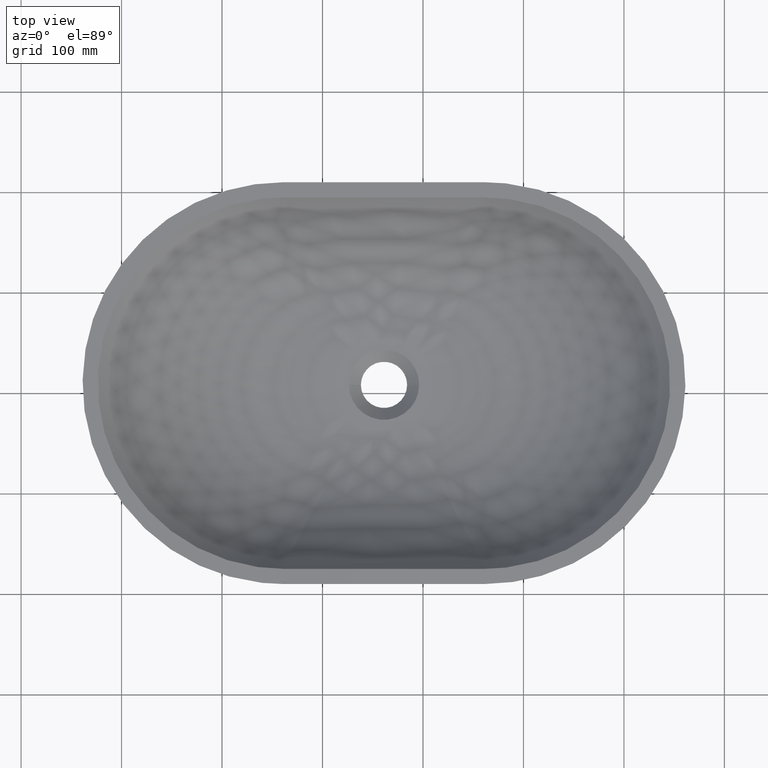
[diagram: clean part render]
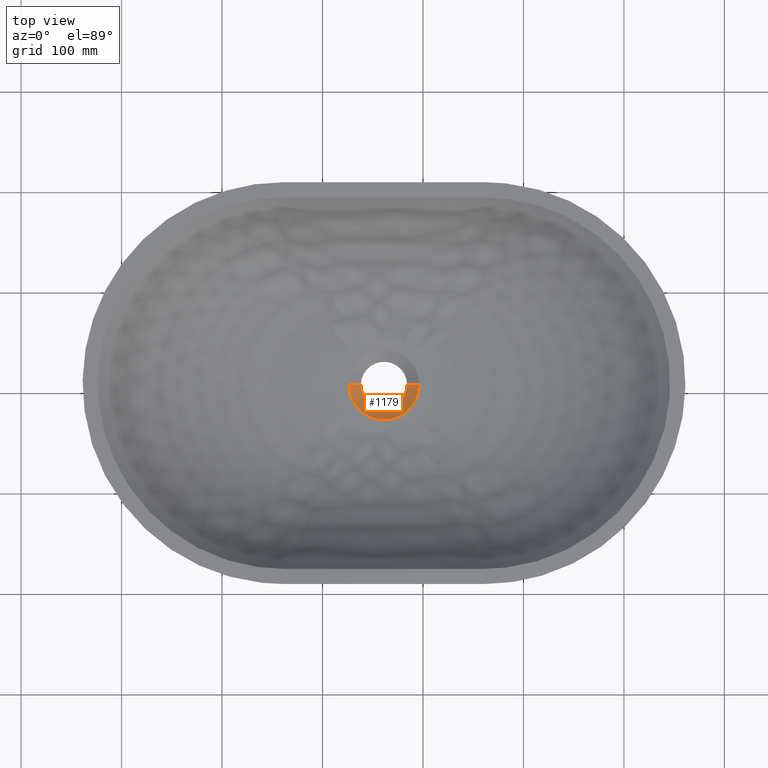
[diagram: same view with one face highlighted and labeled with its STEP entity id]
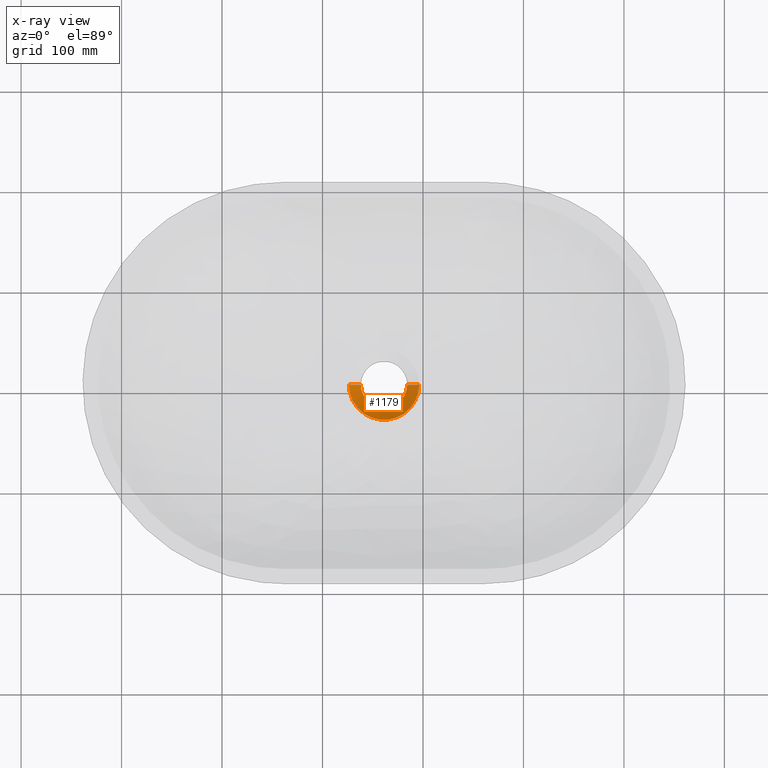
[diagram: x-ray of the same camera — body ghosted, the highlighted face saturated]
A machine part, top view. The second image highlights one B-rep face of the part: STEP entity #1179.
The next image is the same camera in x-ray: the body ghosted, the highlighted face saturated — about 0% of this face is hidden behind the body in this view.
In plain terms, the highlighted conical surface has half-angle 50 deg.
Its self-contained STEP definition (entity closure, byte-faithful):
#22 = VERTEX_POINT ( 'NONE', #698 ) ;
#69 = ORIENTED_EDGE ( 'NONE', *, *, #987, .T. ) ;
#112 = DIRECTION ( 'NONE',  ( 0.0000000000000000000, 0.0000000000000000000, 1.000000000000000000 ) ) ;
#119 = ORIENTED_EDGE ( 'NONE', *, *, #702, .F. ) ;
#135 = CARTESIAN_POINT ( 'NONE',  ( 161.1991770534110100, 8.487121510427186900, 17.31260013540784500 ) ) ;
#165 = DIRECTION ( 'NONE',  ( 1.000000000000000000, 0.0000000000000000000, 0.0000000000000000000 ) ) ;
#173 = LINE ( 'NONE', #1355, #319 ) ;
#195 = CIRCLE ( 'NONE', #431, 35.00000000000000000 ) ;
#213 = CARTESIAN_POINT ( 'NONE',  ( 161.1991770534110100, 8.487121510427186900, 17.31260013540784500 ) ) ;
#220 = ORIENTED_EDGE ( 'NONE', *, *, #1402, .F. ) ;
#280 = CIRCLE ( 'NONE', #1199, 22.99999999999999300 ) ;
#286 = VERTEX_POINT ( 'NONE', #729 ) ;
#303 = VERTEX_POINT ( 'NONE', #622 ) ;
#319 = VECTOR ( 'NONE', #906, 1000.000000000000100 ) ;
#413 = FACE_OUTER_BOUND ( 'NONE', #559, .T. ) ;
#431 = AXIS2_PLACEMENT_3D ( 'NONE', #642, #1353, #1050 ) ;
#523 = DIRECTION ( 'NONE',  ( -0.7660444431189786800, 9.381338752702735700E-017, 0.6427876096865384700 ) ) ;
#529 = LINE ( 'NONE', #1004, #1121 ) ;
#559 = EDGE_LOOP ( 'NONE', ( #835, #69, #119, #220 ) ) ;
#622 = CARTESIAN_POINT ( 'NONE',  ( 196.1991770534110100, 8.487121510427186900, 27.38179570953520400 ) ) ;
#642 = CARTESIAN_POINT ( 'NONE',  ( 161.1991770534110100, 8.487121510427186900, 27.38179570953520400 ) ) ;
#698 = CARTESIAN_POINT ( 'NONE',  ( 126.1991770534109900, 8.487121510427192200, 27.38179570953520400 ) ) ;
#702 = EDGE_CURVE ( 'NONE', #303, #22, #195, .T. ) ;
#729 = CARTESIAN_POINT ( 'NONE',  ( 138.1991770534110100, 8.487121510427190400, 17.31260013540784500 ) ) ;
#823 = EDGE_CURVE ( 'NONE', #286, #1285, #280, .T. ) ;
#835 = ORIENTED_EDGE ( 'NONE', *, *, #823, .F. ) ;
#864 = AXIS2_PLACEMENT_3D ( 'NONE', #135, #1408, #1343 ) ;
#906 = DIRECTION ( 'NONE',  ( 0.7660444431189786800, 0.0000000000000000000, 0.6427876096865384700 ) ) ;
#909 = CARTESIAN_POINT ( 'NONE',  ( 184.1991770534109800, 8.487121510427186900, 17.31260013540784500 ) ) ;
#987 = EDGE_CURVE ( 'NONE', #286, #22, #529, .T. ) ;
#1004 = CARTESIAN_POINT ( 'NONE',  ( 138.1991770534110100, 8.487121510427190400, 17.31260013540784500 ) ) ;
#1050 = DIRECTION ( 'NONE',  ( 0.0000000000000000000, -1.000000000000000000, 0.0000000000000000000 ) ) ;
#1121 = VECTOR ( 'NONE', #523, 1000.000000000000100 ) ;
#1179 = ADVANCED_FACE ( 'NONE', ( #413 ), #1384, .F. ) ;
#1199 = AXIS2_PLACEMENT_3D ( 'NONE', #213, #112, #165 ) ;
#1285 = VERTEX_POINT ( 'NONE', #909 ) ;
#1343 = DIRECTION ( 'NONE',  ( 1.000000000000000000, 0.0000000000000000000, 0.0000000000000000000 ) ) ;
#1353 = DIRECTION ( 'NONE',  ( 2.107482101496299700E-062, 3.030928690397908100E-032, -1.000000000000000000 ) ) ;
#1355 = CARTESIAN_POINT ( 'NONE',  ( 184.1991770534109800, 8.487121510427186900, 17.31260013540784500 ) ) ;
#1384 = CONICAL_SURFACE ( 'NONE', #864, 22.99999999999999300, 0.8726646259971656500 ) ;
#1402 = EDGE_CURVE ( 'NONE', #1285, #303, #173, .T. ) ;
#1408 = DIRECTION ( 'NONE',  ( 0.0000000000000000000, 0.0000000000000000000, 1.000000000000000000 ) ) ;